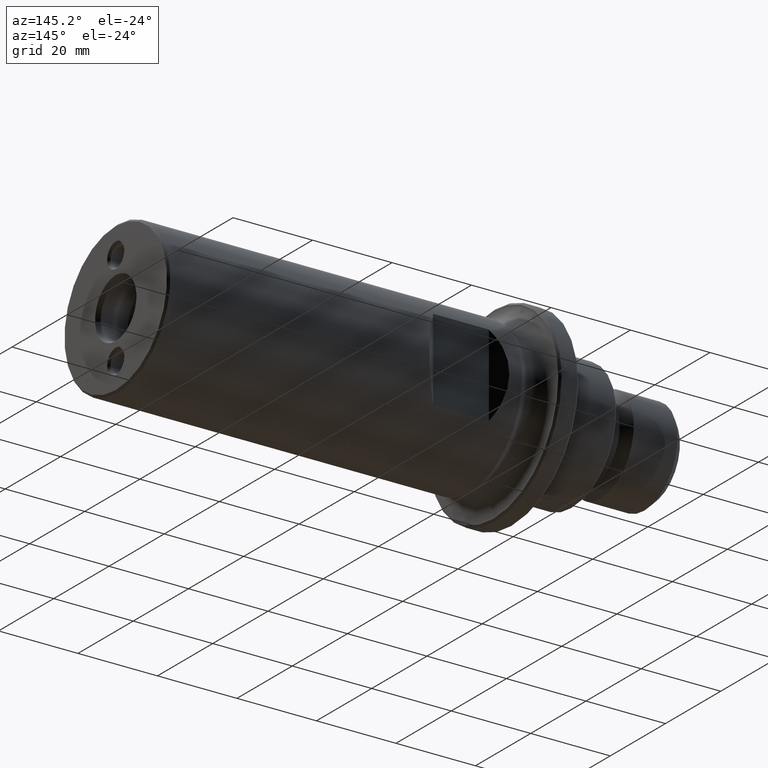
[diagram: clean part render]
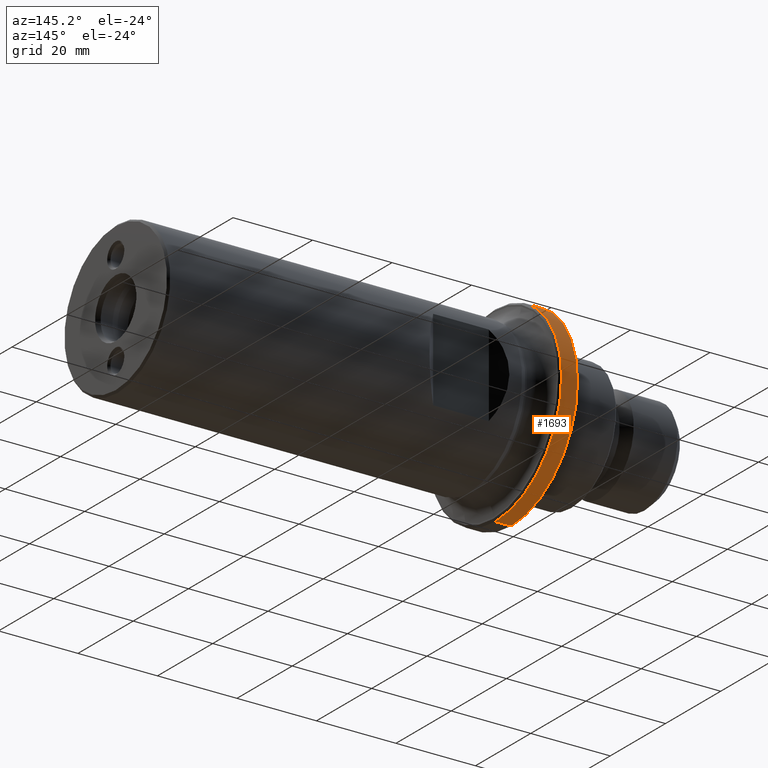
[diagram: same view with one face highlighted and labeled with its STEP entity id]
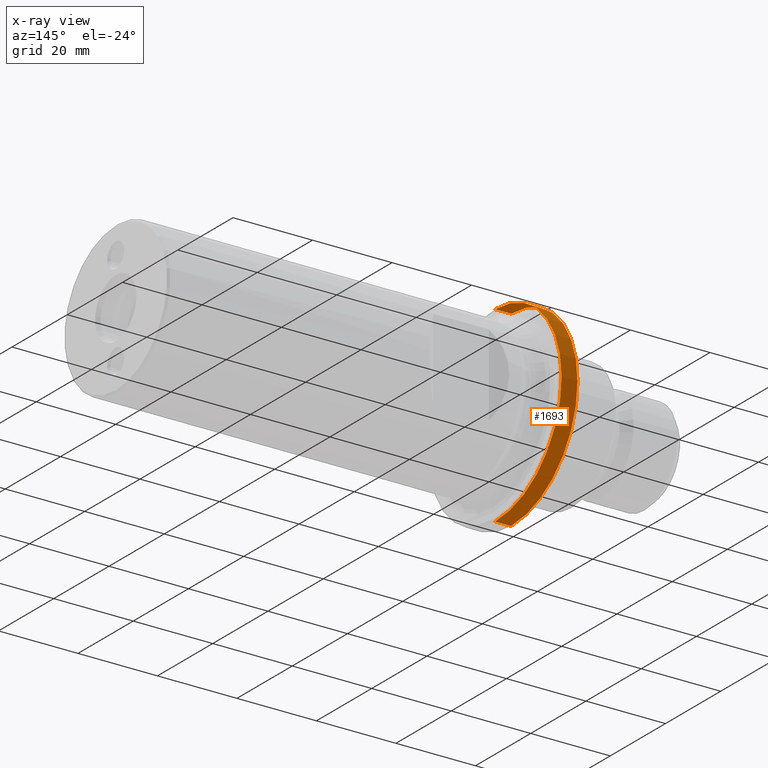
[diagram: x-ray of the same camera — body ghosted, the highlighted face saturated]
A machine part, auxiliary view. The second image highlights one B-rep face of the part: STEP entity #1693.
The next image is the same camera in x-ray: the body ghosted, the highlighted face saturated — about 0% of this face is hidden behind the body in this view.
In plain terms, the highlighted cylindrical surface (partial cylindrical patch) has radius 24 mm, axis along (1, -0, -0).
Its self-contained STEP definition (entity closure, byte-faithful):
#110 = CARTESIAN_POINT ( 'NONE',  ( -99.50000000000000000, 2.939152317953646300E-015, 23.99999999999998600 ) ) ;
#116 = CARTESIAN_POINT ( 'NONE',  ( -99.50000000000000000, 0.0000000000000000000, -23.99999999999998600 ) ) ;
#118 = CARTESIAN_POINT ( 'NONE',  ( -95.50000000000000000, 0.0000000000000000000, -23.99999999999998600 ) ) ;
#124 = CARTESIAN_POINT ( 'NONE',  ( -95.50000000000000000, 2.939152317953646300E-015, 23.99999999999998600 ) ) ;
#333 = EDGE_CURVE ( 'NONE', #1105, #1106, #1434, .T. ) ;
#337 = EDGE_CURVE ( 'NONE', #1110, #1111, #1785, .T. ) ;
#351 = EDGE_CURVE ( 'NONE', #1111, #1105, #1841, .T. ) ;
#352 = EDGE_CURVE ( 'NONE', #1110, #1106, #1840, .T. ) ;
#403 = DIRECTION ( 'NONE',  ( 0.0000000000000000000, 0.0000000000000000000, 1.000000000000000000 ) ) ;
#404 = DIRECTION ( 'NONE',  ( 1.000000000000000000, -0.0000000000000000000, -0.0000000000000000000 ) ) ;
#413 = CARTESIAN_POINT ( 'NONE',  ( -99.50000000000000000, 0.0000000000000000000, 0.0000000000000000000 ) ) ;
#437 = DIRECTION ( 'NONE',  ( 0.0000000000000000000, 0.0000000000000000000, -1.000000000000000000 ) ) ;
#445 = CARTESIAN_POINT ( 'NONE',  ( -95.50000000000000000, 0.0000000000000000000, 0.0000000000000000000 ) ) ;
#459 = DIRECTION ( 'NONE',  ( -1.000000000000000000, 0.0000000000000000000, 0.0000000000000000000 ) ) ;
#560 = DIRECTION ( 'NONE',  ( 1.000000000000000000, -0.0000000000000000000, -0.0000000000000000000 ) ) ;
#561 = CARTESIAN_POINT ( 'NONE',  ( 0.0000000000000000000, 0.0000000000000000000, -23.99999999999998600 ) ) ;
#572 = DIRECTION ( 'NONE',  ( 1.000000000000000000, -0.0000000000000000000, -0.0000000000000000000 ) ) ;
#586 = CARTESIAN_POINT ( 'NONE',  ( 0.0000000000000000000, 2.939152317953646300E-015, 23.99999999999998600 ) ) ;
#689 = EDGE_LOOP ( 'NONE', ( #1256, #1218, #1188, #1185 ) ) ;
#734 = AXIS2_PLACEMENT_3D ( 'NONE', #2177, #2176, #2179 ) ;
#1105 = VERTEX_POINT ( 'NONE', #124 ) ;
#1106 = VERTEX_POINT ( 'NONE', #118 ) ;
#1110 = VERTEX_POINT ( 'NONE', #116 ) ;
#1111 = VERTEX_POINT ( 'NONE', #110 ) ;
#1185 = ORIENTED_EDGE ( 'NONE', *, *, #352, .F. ) ;
#1188 = ORIENTED_EDGE ( 'NONE', *, *, #333, .T. ) ;
#1218 = ORIENTED_EDGE ( 'NONE', *, *, #351, .T. ) ;
#1256 = ORIENTED_EDGE ( 'NONE', *, *, #337, .T. ) ;
#1334 = AXIS2_PLACEMENT_3D ( 'NONE', #413, #404, #403 ) ;
#1336 = AXIS2_PLACEMENT_3D ( 'NONE', #445, #459, #437 ) ;
#1434 = CIRCLE ( 'NONE', #1336, 23.99999999999998600 ) ;
#1693 = ADVANCED_FACE ( 'NONE', ( #1934 ), #1932, .T. ) ;
#1785 = CIRCLE ( 'NONE', #1334, 23.99999999999998600 ) ;
#1837 = VECTOR ( 'NONE', #560, 1000.000000000000000 ) ;
#1839 = VECTOR ( 'NONE', #572, 1000.000000000000000 ) ;
#1840 = LINE ( 'NONE', #561, #1837 ) ;
#1841 = LINE ( 'NONE', #586, #1839 ) ;
#1932 = CYLINDRICAL_SURFACE ( 'NONE', #734, 23.99999999999998600 ) ;
#1934 = FACE_OUTER_BOUND ( 'NONE', #689, .T. ) ;
#2176 = DIRECTION ( 'NONE',  ( 1.000000000000000000, -0.0000000000000000000, -0.0000000000000000000 ) ) ;
#2177 = CARTESIAN_POINT ( 'NONE',  ( 0.0000000000000000000, 0.0000000000000000000, 0.0000000000000000000 ) ) ;
#2179 = DIRECTION ( 'NONE',  ( 0.0000000000000000000, 0.0000000000000000000, -1.000000000000000000 ) ) ;